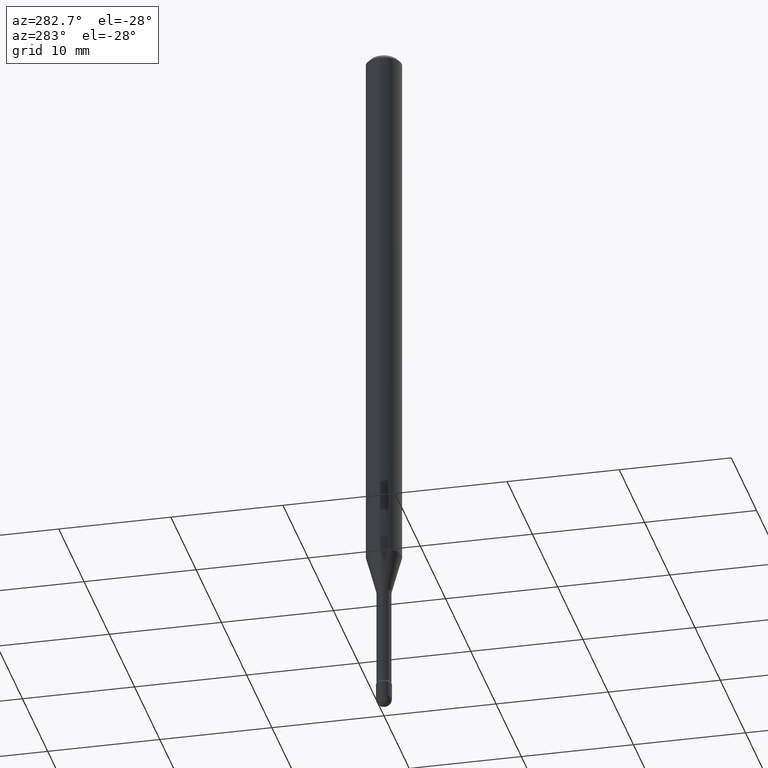
[diagram: clean part render]
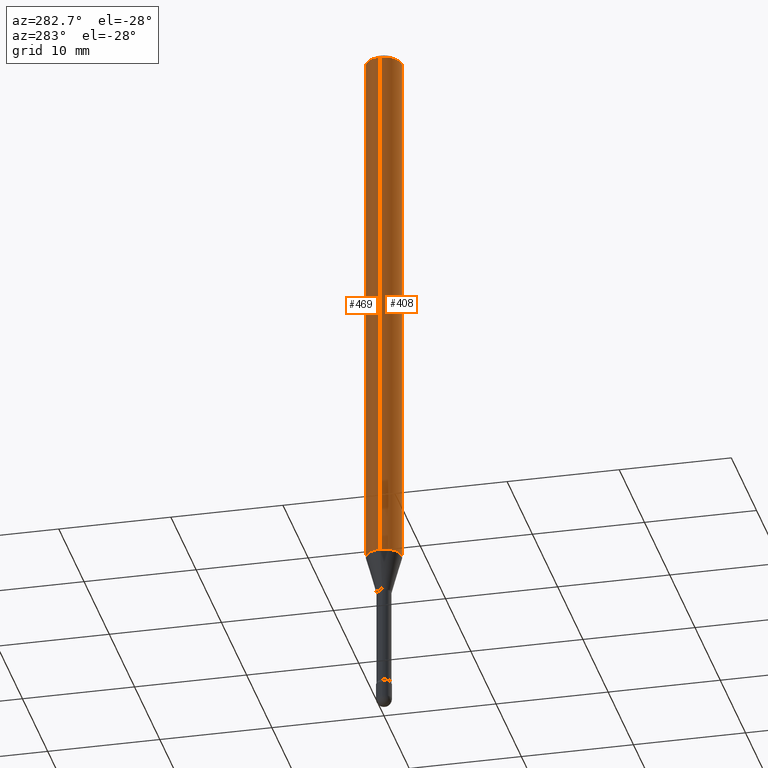
[diagram: same view with one multi-face feature highlighted, each face labeled with its STEP entity id]
A machine part, auxiliary view. The highlighted faces form ONE feature: a constant-radius fillet chain: 2 tangent blend faces with common blend radius 1.5875 mm. The faces share edges in the B-rep.
Their STEP definitions:
[1] entity #408 (Cylinder):
#29 = DIRECTION ( 'NONE',  ( -2.445468806185136597E-29, 3.491481338843145583E-15, 1.000000000000000000 ) ) ;
#34 = AXIS2_PLACEMENT_3D ( 'NONE', #229, #276, #442 ) ;
#37 = AXIS2_PLACEMENT_3D ( 'NONE', #481, #29, #477 ) ;
#44 = ORIENTED_EDGE ( 'NONE', *, *, #374, .T. ) ;
#52 = ORIENTED_EDGE ( 'NONE', *, *, #551, .T. ) ;
#79 = VECTOR ( 'NONE', #470, 39.37007874015748143 ) ;
#89 = CARTESIAN_POINT ( 'NONE',  ( -0.06250000000000000000, -2.939540860326531103E-15, -0.01500000000000008271 ) ) ;
#95 = ORIENTED_EDGE ( 'NONE', *, *, #104, .F. ) ;
#104 = EDGE_CURVE ( 'NONE', #152, #267, #308, .T. ) ;
#128 = FACE_OUTER_BOUND ( 'NONE', #333, .T. ) ;
#131 = LINE ( 'NONE', #293, #79 ) ;
#143 = ORIENTED_EDGE ( 'NONE', *, *, #264, .F. ) ;
#152 = VERTEX_POINT ( 'NONE', #89 ) ;
#169 = CARTESIAN_POINT ( 'NONE',  ( 4.703175343761648131E-29, -6.714887920270539965E-15, -1.923220337902600940 ) ) ;
#192 = VERTEX_POINT ( 'NONE', #234 ) ;
#229 = CARTESIAN_POINT ( 'NONE',  ( 3.668203209277725232E-31, -5.237222008264747365E-17, -0.01500000000000008271 ) ) ;
#234 = CARTESIAN_POINT ( 'NONE',  ( 0.06250000000000000000, -7.151323087625930845E-15, -1.923220337902600940 ) ) ;
#254 = CYLINDRICAL_SURFACE ( 'NONE', #37, 0.06250000000000000000 ) ;
#264 = EDGE_CURVE ( 'NONE', #454, #152, #319, .T. ) ;
#267 = VERTEX_POINT ( 'NONE', #449 ) ;
#276 = DIRECTION ( 'NONE',  ( -2.445468806185136597E-29, 3.491481338843145583E-15, 1.000000000000000000 ) ) ;
#293 = CARTESIAN_POINT ( 'NONE',  ( 0.06250000000000000000, -4.364351673553899931E-16, 4.780733988912490708E-16 ) ) ;
#308 = CIRCLE ( 'NONE', #34, 0.06250000000000000000 ) ;
#319 = LINE ( 'NONE', #531, #345 ) ;
#333 = EDGE_LOOP ( 'NONE', ( #143, #44, #52, #95 ) ) ;
#344 = DIRECTION ( 'NONE',  ( -2.445468806185136597E-29, 3.491481338843145583E-15, 1.000000000000000000 ) ) ;
#345 = VECTOR ( 'NONE', #492, 39.37007874015748143 ) ;
#374 = EDGE_CURVE ( 'NONE', #454, #192, #426, .T. ) ;
#408 = ADVANCED_FACE ( 'NONE', ( #128 ), #254, .T. ) ;
#426 = CIRCLE ( 'NONE', #438, 0.06250000000000000000 ) ;
#438 = AXIS2_PLACEMENT_3D ( 'NONE', #169, #344, #444 ) ;
#442 = DIRECTION ( 'NONE',  ( 1.000000000000000000, -6.982962677686266711E-15, 0.000000000000000000 ) ) ;
#444 = DIRECTION ( 'NONE',  ( 1.000000000000000000, -6.982962677686262766E-15, 0.000000000000000000 ) ) ;
#449 = CARTESIAN_POINT ( 'NONE',  ( 0.06250000000000000000, -4.888073874380391431E-16, -0.01500000000000008271 ) ) ;
#454 = VERTEX_POINT ( 'NONE', #545 ) ;
#470 = DIRECTION ( 'NONE',  ( -2.445468806185136877E-29, 3.491481338843145188E-15, 1.000000000000000000 ) ) ;
#477 = DIRECTION ( 'NONE',  ( 1.000000000000000000, -6.982962677686266711E-15, 4.852736867747366207E-29 ) ) ;
#481 = CARTESIAN_POINT ( 'NONE',  ( -1.169113584055446105E-44, 1.669184350826100908E-30, 4.780733988912460139E-16 ) ) ;
#492 = DIRECTION ( 'NONE',  ( -2.445468806185136877E-29, 3.491481338843145188E-15, 1.000000000000000000 ) ) ;
#531 = CARTESIAN_POINT ( 'NONE',  ( -0.06250000000000000000, 4.440892098500642925E-16, 4.780733988912429571E-16 ) ) ;
#545 = CARTESIAN_POINT ( 'NONE',  ( -0.06250000000000000000, -6.270798710420477349E-15, -1.923220337902600940 ) ) ;
#551 = EDGE_CURVE ( 'NONE', #192, #267, #131, .T. ) ;
[2] entity #469 (Cylinder):
#22 = CARTESIAN_POINT ( 'NONE',  ( -1.169113584055446105E-44, 1.669184350826100908E-30, 4.780733988912460139E-16 ) ) ;
#42 = ORIENTED_EDGE ( 'NONE', *, *, #551, .F. ) ;
#55 = EDGE_LOOP ( 'NONE', ( #242, #506, #358, #42 ) ) ;
#79 = VECTOR ( 'NONE', #470, 39.37007874015748143 ) ;
#89 = CARTESIAN_POINT ( 'NONE',  ( -0.06250000000000000000, -2.939540860326531103E-15, -0.01500000000000008271 ) ) ;
#93 = CIRCLE ( 'NONE', #502, 0.06250000000000000000 ) ;
#131 = LINE ( 'NONE', #293, #79 ) ;
#144 = EDGE_CURVE ( 'NONE', #192, #454, #411, .T. ) ;
#152 = VERTEX_POINT ( 'NONE', #89 ) ;
#160 = CYLINDRICAL_SURFACE ( 'NONE', #542, 0.06250000000000000000 ) ;
#192 = VERTEX_POINT ( 'NONE', #234 ) ;
#234 = CARTESIAN_POINT ( 'NONE',  ( 0.06250000000000000000, -7.151323087625930845E-15, -1.923220337902600940 ) ) ;
#242 = ORIENTED_EDGE ( 'NONE', *, *, #144, .T. ) ;
#248 = DIRECTION ( 'NONE',  ( 1.000000000000000000, -6.982962677686266711E-15, 4.852736867747366207E-29 ) ) ;
#251 = CARTESIAN_POINT ( 'NONE',  ( 4.703175343761648131E-29, -6.714887920270539965E-15, -1.923220337902600940 ) ) ;
#264 = EDGE_CURVE ( 'NONE', #454, #152, #319, .T. ) ;
#267 = VERTEX_POINT ( 'NONE', #449 ) ;
#293 = CARTESIAN_POINT ( 'NONE',  ( 0.06250000000000000000, -4.364351673553899931E-16, 4.780733988912490708E-16 ) ) ;
#303 = DIRECTION ( 'NONE',  ( -2.445468806185136597E-29, 3.491481338843145583E-15, 1.000000000000000000 ) ) ;
#319 = LINE ( 'NONE', #531, #345 ) ;
#335 = DIRECTION ( 'NONE',  ( -2.445468806185136597E-29, 3.491481338843145583E-15, 1.000000000000000000 ) ) ;
#345 = VECTOR ( 'NONE', #492, 39.37007874015748143 ) ;
#358 = ORIENTED_EDGE ( 'NONE', *, *, #491, .F. ) ;
#377 = CARTESIAN_POINT ( 'NONE',  ( 3.668203209277725232E-31, -5.237222008264747365E-17, -0.01500000000000008271 ) ) ;
#411 = CIRCLE ( 'NONE', #549, 0.06250000000000000000 ) ;
#449 = CARTESIAN_POINT ( 'NONE',  ( 0.06250000000000000000, -4.888073874380391431E-16, -0.01500000000000008271 ) ) ;
#454 = VERTEX_POINT ( 'NONE', #545 ) ;
#465 = FACE_OUTER_BOUND ( 'NONE', #55, .T. ) ;
#468 = DIRECTION ( 'NONE',  ( 1.000000000000000000, -6.982962677686266711E-15, 0.000000000000000000 ) ) ;
#469 = ADVANCED_FACE ( 'NONE', ( #465 ), #160, .T. ) ;
#470 = DIRECTION ( 'NONE',  ( -2.445468806185136877E-29, 3.491481338843145188E-15, 1.000000000000000000 ) ) ;
#482 = DIRECTION ( 'NONE',  ( 1.000000000000000000, -6.982962677686262766E-15, 0.000000000000000000 ) ) ;
#491 = EDGE_CURVE ( 'NONE', #267, #152, #93, .T. ) ;
#492 = DIRECTION ( 'NONE',  ( -2.445468806185136877E-29, 3.491481338843145188E-15, 1.000000000000000000 ) ) ;
#502 = AXIS2_PLACEMENT_3D ( 'NONE', #377, #547, #468 ) ;
#506 = ORIENTED_EDGE ( 'NONE', *, *, #264, .T. ) ;
#531 = CARTESIAN_POINT ( 'NONE',  ( -0.06250000000000000000, 4.440892098500642925E-16, 4.780733988912429571E-16 ) ) ;
#542 = AXIS2_PLACEMENT_3D ( 'NONE', #22, #335, #248 ) ;
#545 = CARTESIAN_POINT ( 'NONE',  ( -0.06250000000000000000, -6.270798710420477349E-15, -1.923220337902600940 ) ) ;
#547 = DIRECTION ( 'NONE',  ( -2.445468806185136597E-29, 3.491481338843145583E-15, 1.000000000000000000 ) ) ;
#549 = AXIS2_PLACEMENT_3D ( 'NONE', #251, #303, #482 ) ;
#551 = EDGE_CURVE ( 'NONE', #192, #267, #131, .T. ) ;